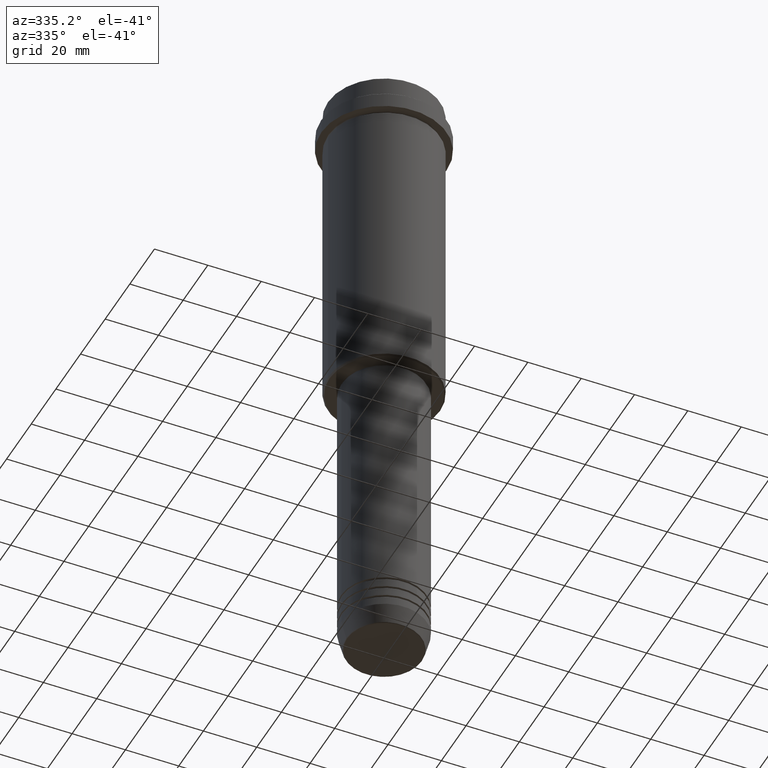
[diagram: clean part render]
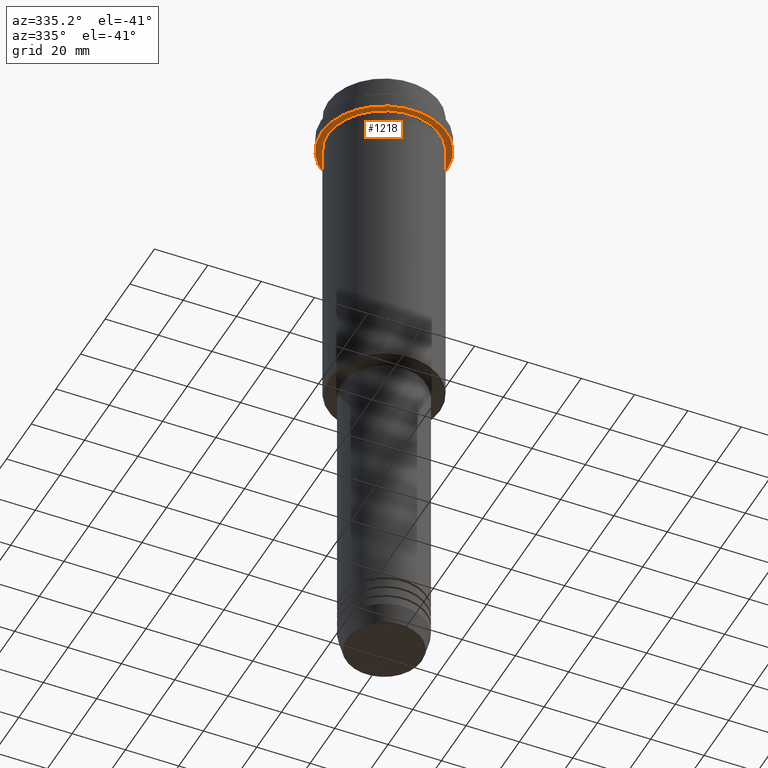
[diagram: same view with one face highlighted and labeled with its STEP entity id]
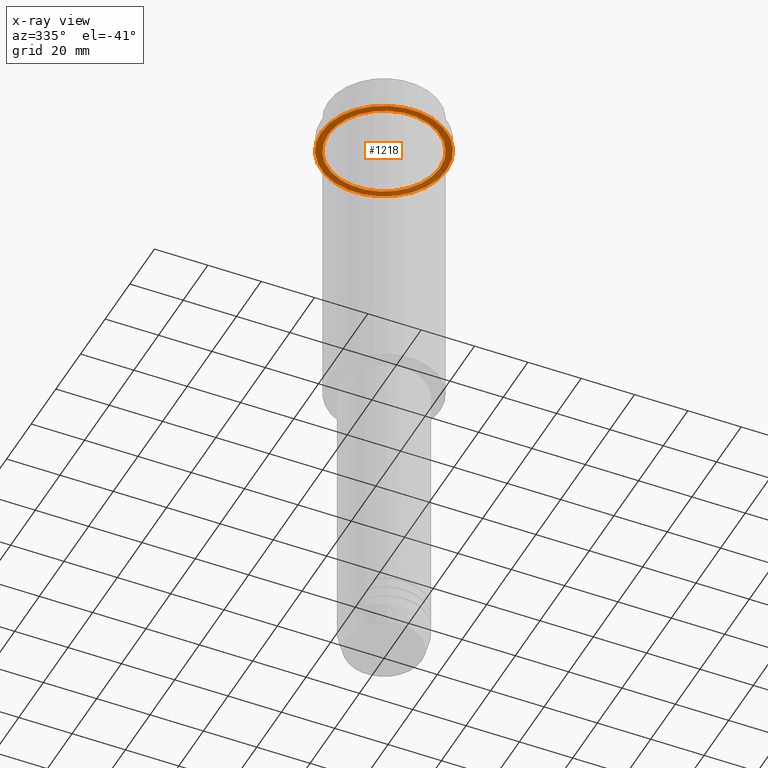
[diagram: x-ray of the same camera — body ghosted, the highlighted face saturated]
A machine part, auxiliary view. The second image highlights one B-rep face of the part: STEP entity #1218.
The next image is the same camera in x-ray: the body ghosted, the highlighted face saturated — about 34% of this face is hidden behind the body in this view.
In plain terms, the highlighted planar face has unit normal (0, 0, -1).
Its self-contained STEP definition (entity closure, byte-faithful):
#9 = CARTESIAN_POINT ( 'NONE',  ( 23.50000000000000355, 0.000000000000000000, -15.00000000000000000 ) ) ;
#99 = VERTEX_POINT ( 'NONE', #972 ) ;
#134 = CARTESIAN_POINT ( 'NONE',  ( 0.000000000000000000, 0.000000000000000000, -15.00000000000000178 ) ) ;
#214 = DIRECTION ( 'NONE',  ( 1.000000000000000000, 0.000000000000000000, 0.000000000000000000 ) ) ;
#220 = AXIS2_PLACEMENT_3D ( 'NONE', #134, #559, #1012 ) ;
#227 = CARTESIAN_POINT ( 'NONE',  ( 20.99999999999999289, 2.571758278209440872E-15, -15.00000000000000178 ) ) ;
#243 = AXIS2_PLACEMENT_3D ( 'NONE', #868, #425, #214 ) ;
#254 = CARTESIAN_POINT ( 'NONE',  ( 0.000000000000000000, 0.000000000000000000, -15.00000000000000178 ) ) ;
#396 = CIRCLE ( 'NONE', #1234, 20.99999999999999289 ) ;
#403 = EDGE_CURVE ( 'NONE', #1290, #99, #814, .T. ) ;
#425 = DIRECTION ( 'NONE',  ( -0.000000000000000000, -0.000000000000000000, 1.000000000000000000 ) ) ;
#453 = PLANE ( 'NONE',  #1389 ) ;
#478 = DIRECTION ( 'NONE',  ( -1.000000000000000000, 0.000000000000000000, 0.000000000000000000 ) ) ;
#487 = CIRCLE ( 'NONE', #243, 23.50000000000000355 ) ;
#492 = ORIENTED_EDGE ( 'NONE', *, *, #1395, .F. ) ;
#537 = DIRECTION ( 'NONE',  ( 0.000000000000000000, 0.000000000000000000, -1.000000000000000000 ) ) ;
#559 = DIRECTION ( 'NONE',  ( -0.000000000000000000, -0.000000000000000000, 1.000000000000000000 ) ) ;
#622 = AXIS2_PLACEMENT_3D ( 'NONE', #1303, #984, #1286 ) ;
#640 = FACE_BOUND ( 'NONE', #711, .T. ) ;
#711 = EDGE_LOOP ( 'NONE', ( #1029, #995 ) ) ;
#719 = EDGE_CURVE ( 'NONE', #1086, #1244, #1092, .T. ) ;
#794 = EDGE_LOOP ( 'NONE', ( #898, #492 ) ) ;
#814 = CIRCLE ( 'NONE', #622, 23.50000000000000355 ) ;
#838 = EDGE_CURVE ( 'NONE', #1244, #1086, #396, .T. ) ;
#868 = CARTESIAN_POINT ( 'NONE',  ( 0.000000000000000000, 0.000000000000000000, -15.00000000000000000 ) ) ;
#898 = ORIENTED_EDGE ( 'NONE', *, *, #403, .F. ) ;
#915 = DIRECTION ( 'NONE',  ( -0.000000000000000000, -0.000000000000000000, 1.000000000000000000 ) ) ;
#972 = CARTESIAN_POINT ( 'NONE',  ( -23.50000000000000711, 2.877919977996281109E-15, -15.00000000000000000 ) ) ;
#984 = DIRECTION ( 'NONE',  ( -0.000000000000000000, -0.000000000000000000, 1.000000000000000000 ) ) ;
#995 = ORIENTED_EDGE ( 'NONE', *, *, #719, .T. ) ;
#1012 = DIRECTION ( 'NONE',  ( -1.000000000000000000, 0.000000000000000000, 0.000000000000000000 ) ) ;
#1015 = CARTESIAN_POINT ( 'NONE',  ( -20.99999999999999289, 0.000000000000000000, -15.00000000000000178 ) ) ;
#1029 = ORIENTED_EDGE ( 'NONE', *, *, #838, .T. ) ;
#1086 = VERTEX_POINT ( 'NONE', #227 ) ;
#1092 = CIRCLE ( 'NONE', #220, 20.99999999999999289 ) ;
#1110 = FACE_OUTER_BOUND ( 'NONE', #794, .T. ) ;
#1119 = CARTESIAN_POINT ( 'NONE',  ( 0.000000000000000000, 23.50000000000000355, -15.00000000000000178 ) ) ;
#1218 = ADVANCED_FACE ( 'NONE', ( #640, #1110 ), #453, .T. ) ;
#1234 = AXIS2_PLACEMENT_3D ( 'NONE', #254, #915, #478 ) ;
#1244 = VERTEX_POINT ( 'NONE', #1015 ) ;
#1286 = DIRECTION ( 'NONE',  ( 1.000000000000000000, 0.000000000000000000, 0.000000000000000000 ) ) ;
#1290 = VERTEX_POINT ( 'NONE', #9 ) ;
#1303 = CARTESIAN_POINT ( 'NONE',  ( 0.000000000000000000, 0.000000000000000000, -15.00000000000000000 ) ) ;
#1307 = DIRECTION ( 'NONE',  ( -1.000000000000000000, 0.000000000000000000, -0.000000000000000000 ) ) ;
#1389 = AXIS2_PLACEMENT_3D ( 'NONE', #1119, #537, #1307 ) ;
#1395 = EDGE_CURVE ( 'NONE', #99, #1290, #487, .T. ) ;